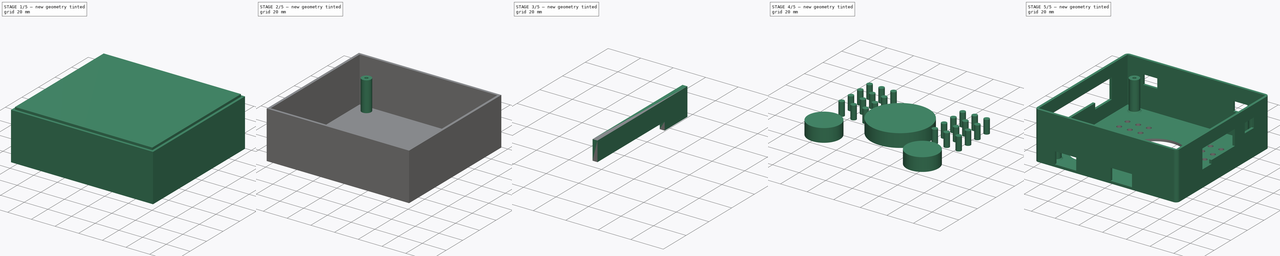
[diagram: build sequence overview — one tinted view per stage of 5, left to right]
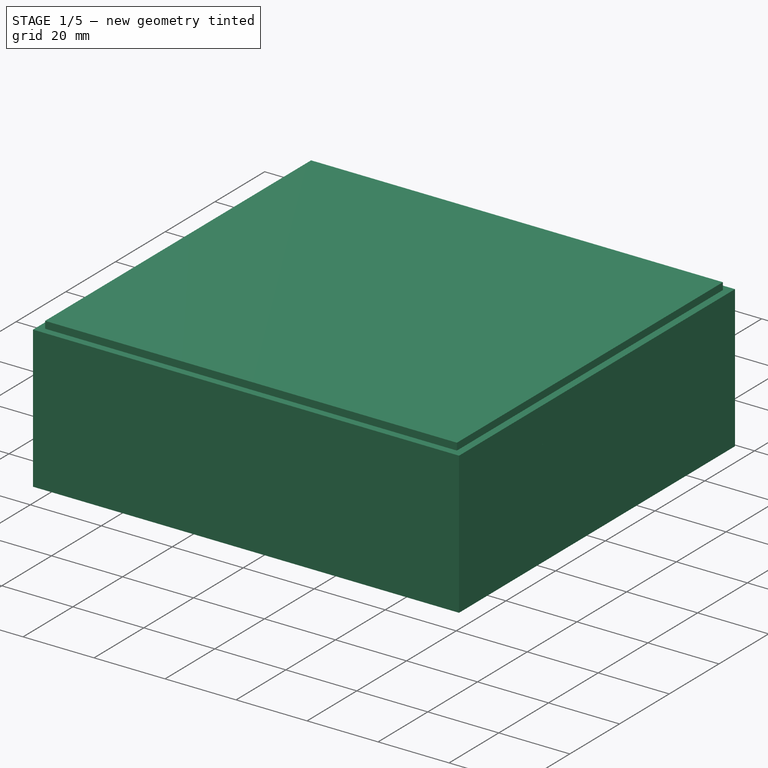
[diagram: stage 1 of 5 — iso view after this stage's code; geometry added in this stage tinted green]
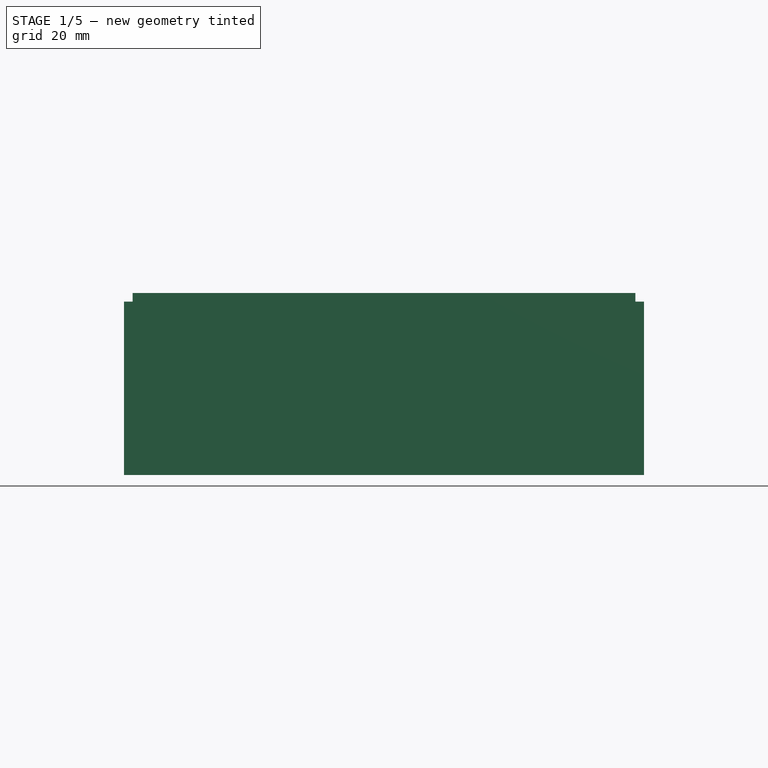
[diagram: stage 1 of 5 — front view after this stage's code; geometry added in this stage tinted green]
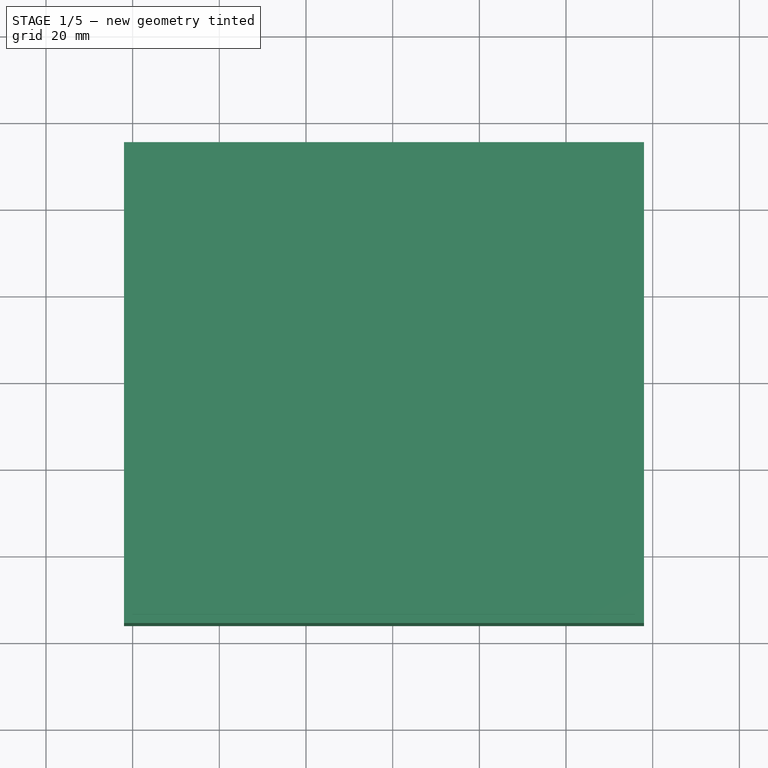
[diagram: stage 1 of 5 — top view after this stage's code; geometry added in this stage tinted green]
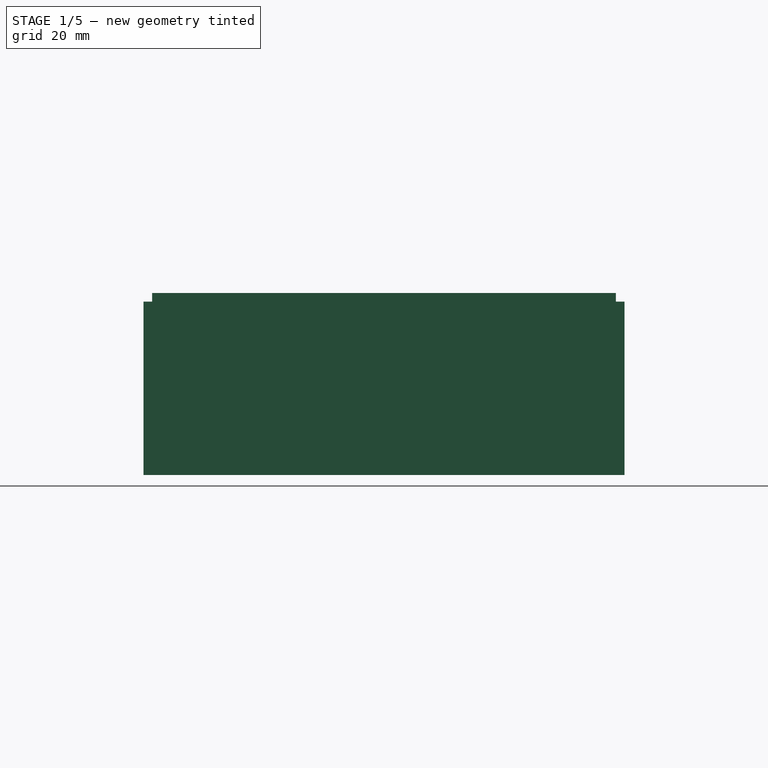
[diagram: stage 1 of 5 — right view after this stage's code; geometry added in this stage tinted green]
FCSTD DOCUMENT  (FreeCAD 0.16R6700 (Git))
Label: colibri-v2-box
License: All rights reserved
LicenseURL: http://en.wikipedia.org/wiki/All_rights_reserved
objects: Part::Cut×6, Sketcher::SketchObject×6, Part::Extrusion×6, Part::Box×2, Part::Fuse×1, Part::Fillet×1, Part::Chamfer×1
note: 23 computed .brp shape members not serialized (recipe doc carries the construction recipe); baked Part::Feature solids carry a one-line shape summary decoded from their .brp

FEATURE [Part::Box] Box  label="Outer"
  Height = 40
  Length = 120
  Placement = pos=(-62,-56,0) rot=(0,0,1;0rad)
  Width = 111
FEATURE [Part::Box] Box001  label="Inner"
  Height = 40
  Length = 116
  Placement = pos=(-60,-54,2) rot=(0,0,1;0rad)
  Width = 107
FEATURE [Part::Extrusion] Extrude002  label="Extrude Wall Plug"
  Base = -> Sketch002
  Dir = (-5,0,0)
  Solid = true
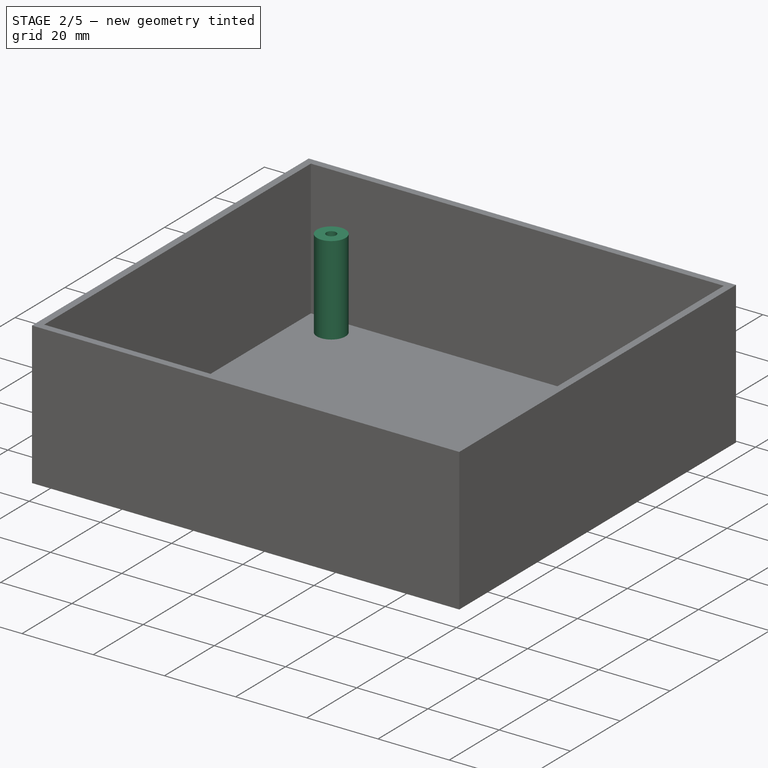
[diagram: stage 2 of 5 — iso view after this stage's code; geometry added in this stage tinted green]
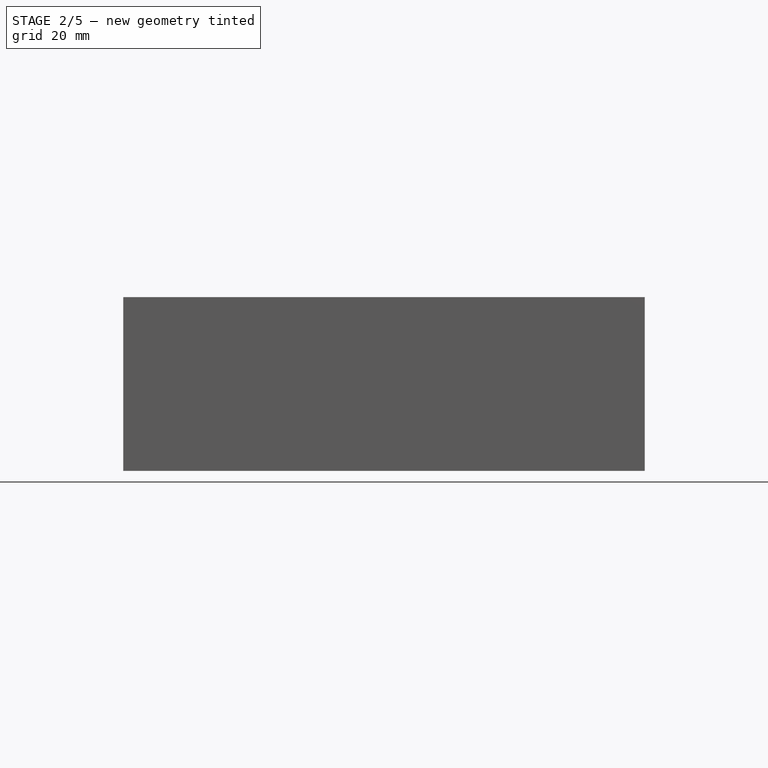
[diagram: stage 2 of 5 — front view after this stage's code; geometry added in this stage tinted green]
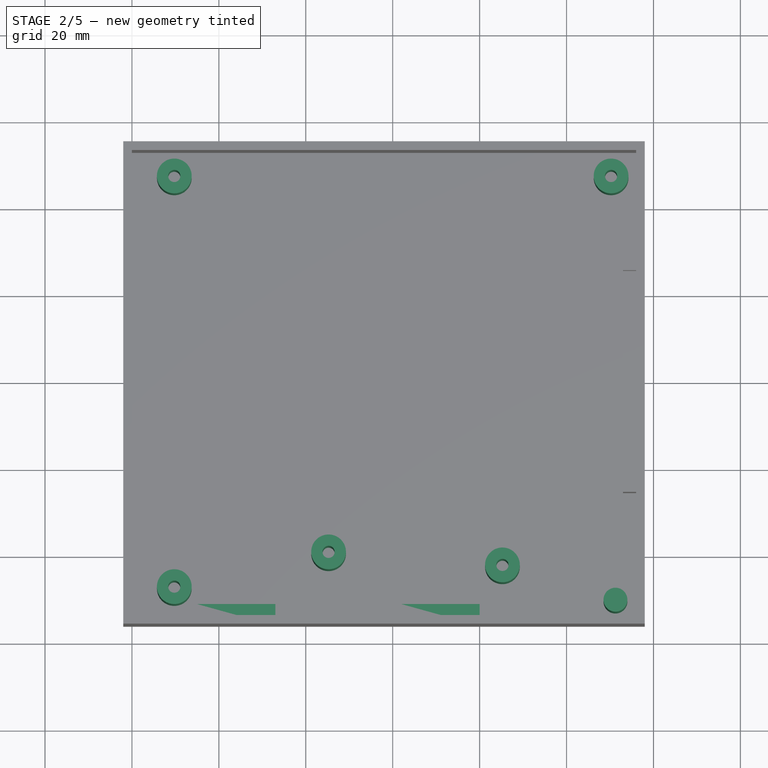
[diagram: stage 2 of 5 — top view after this stage's code; geometry added in this stage tinted green]
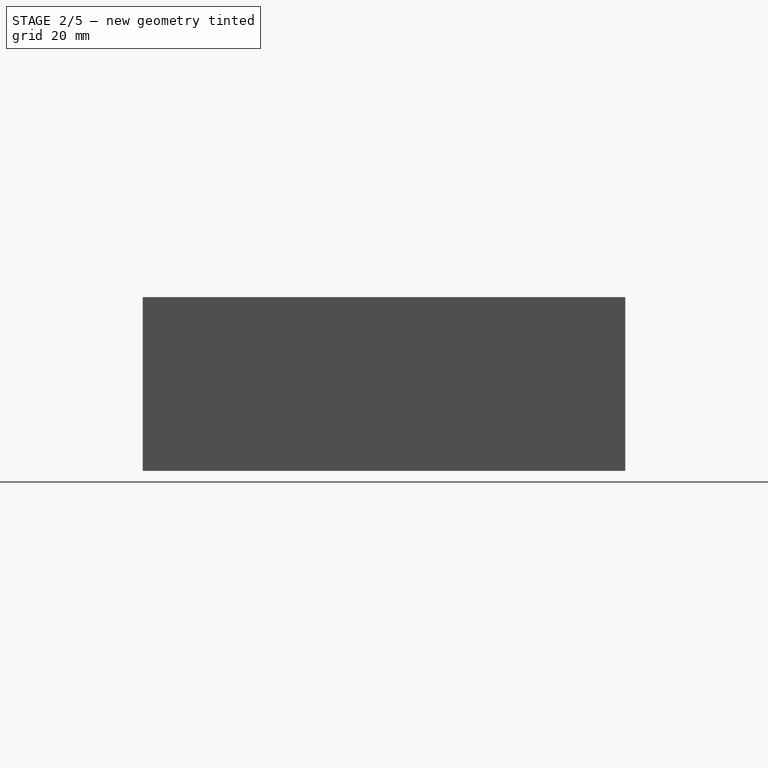
[diagram: stage 2 of 5 — right view after this stage's code; geometry added in this stage tinted green]
FEATURE [Part::Cut] Cut  label="Main"
  Base = -> Box
  Tool = -> Box001
FEATURE [Sketcher::SketchObject] Sketch001  label="Mount Columns Sketch"
  Placement = pos=(0,0,2) rot=(0,0,1;0rad)
  sketch-geometry (16):
    g0: LineSegment [constr] StartX=-50.25 StartY=47.25 StartZ=0 EndX=50.25 EndY=47.25 EndZ=0
    g1: LineSegment [constr] StartX=50.25 StartY=47.25 StartZ=0 EndX=50.25 EndY=-47.25 EndZ=0
    g2: LineSegment [constr] StartX=50.25 StartY=-47.25 StartZ=0 EndX=-50.25 EndY=-47.25 EndZ=0
    g3: LineSegment [constr] StartX=-50.25 StartY=-47.25 StartZ=0 EndX=-50.25 EndY=47.25 EndZ=0
    g4: GeomPoint [constr] X=50.25 Y=-47.25 Z=0
    g5: Circle CenterX=-50.25 CenterY=-47.25 CenterZ=0 NormalX=0 NormalY=0 NormalZ=1 Radius=1.4
    g6: Circle CenterX=50.25 CenterY=47.25 CenterZ=0 NormalX=0 NormalY=0 NormalZ=1 Radius=1.4
    g7: Circle CenterX=-50.25 CenterY=-47.25 CenterZ=0 NormalX=0 NormalY=0 NormalZ=1 Radius=4
    g8: Circle CenterX=50.25 CenterY=47.25 CenterZ=0 NormalX=0 NormalY=0 NormalZ=1 Radius=4
    g9: Circle CenterX=-50.25 CenterY=47.25 CenterZ=0 NormalX=0 NormalY=0 NormalZ=1 Radius=4
    g10: Circle CenterX=-50.25 CenterY=47.25 CenterZ=0 NormalX=0 NormalY=0 NormalZ=1 Radius=1.4
    g11: Circle CenterX=25.25 CenterY=-42.25 CenterZ=0 NormalX=0 NormalY=0 NormalZ=1 Radius=4
    g12: Circle CenterX=25.25 CenterY=-42.25 CenterZ=0 NormalX=0 NormalY=0 NormalZ=1 Radius=1.4
    g13: Circle CenterX=51.25 CenterY=-50.25 CenterZ=0 NormalX=0 NormalY=0 NormalZ=1 Radius=2.75
    g14: Circle CenterX=-14.75 CenterY=-39.25 CenterZ=0 NormalX=0 NormalY=0 NormalZ=1 Radius=4
    g15: Circle CenterX=-14.75 CenterY=-39.25 CenterZ=0 NormalX=0 NormalY=0 NormalZ=1 Radius=1.4
  constraints (39):
    c: Coincident(g0,g1)
    c: Coincident(g1,g2)
    c: Coincident(g3,g0)
    c: Horizontal(g0)
    c: Horizontal(g2)
    c: Vertical(g1)
    c: Vertical(g3)
    c: Symmetric(g0,g0,g-2)
    c: Symmetric(g0,g2,g-1)
    c: DistanceX(g0,g0) = 100.5
    c: PointOnObject(g4,g1)
    c: DistanceY(g4,g0) = 94.5
    c: Coincident(g5,g2)
    c: Coincident(g6,g0)
    c: Coincident(g7,g2)
    c: Coincident(g8,g0)
    c: Coincident(g4,g1)
    c: Coincident(g10,g9)
    c: Radius(g9) = 4
    c: Equal(g9,g8)
    c: Radius(g10) = 1.4
    c: Equal(g10,g6)
    c: Equal(g10,g5)
    c: Coincident(g3,g2)
    c: Coincident(g9,g0)
    c: Equal(g7,g9)
    c: Coincident(g12,g11)
    c: Equal(g12,g10)
    c: Equal(g11,g9)
    c: DistanceY(g2,g11) = 5
    c: DistanceX(g2,g11) = 75.5
    c: Radius(g13) = 2.75
    c: DistanceY(g13,g1) = 3
    c: DistanceX(g1,g13) = 1
    c: Coincident(g15,g14)
    c: Equal(g14,g9)
    c: Equal(g15,g10)
    c: DistanceX(g2,g14) = 35.5
    c: DistanceY(g2,g14) = 8
FEATURE [Sketcher::SketchObject] Sketch  label="Sketch Battery"
  ExternalGeometry = -> [Cut]
  Placement = pos=(0,-56,0) rot=(1,0,0;1.5708rad)
  Support = -> Cut [Face2]
  sketch-geometry (8):
    g0: LineSegment StartX=2 StartY=12 StartZ=0 EndX=20 EndY=12 EndZ=0
    g1: LineSegment StartX=20 StartY=12 StartZ=0 EndX=20 EndY=2 EndZ=0
    g2: LineSegment StartX=20 StartY=2 StartZ=0 EndX=2 EndY=2 EndZ=0
    g3: LineSegment StartX=2 StartY=2 StartZ=0 EndX=2 EndY=12 EndZ=0
    g4: LineSegment StartX=-45 StartY=12 StartZ=0 EndX=-27 EndY=12 EndZ=0
    g5: LineSegment StartX=-27 StartY=12 StartZ=0 EndX=-27 EndY=2 EndZ=0
    g6: LineSegment StartX=-27 StartY=2 StartZ=0 EndX=-45 EndY=2 EndZ=0
    g7: LineSegment StartX=-45 StartY=2 StartZ=0 EndX=-45 EndY=12 EndZ=0
  constraints (24):
    c: Coincident(g0,g1)
    c: Coincident(g1,g2)
    c: Coincident(g2,g3)
    c: Coincident(g3,g0)
    c: Horizontal(g0)
    c: Horizontal(g2)
    c: Vertical(g1)
    c: Vertical(g3)
    c: Coincident(g4,g5)
    c: Coincident(g5,g6)
    c: Coincident(g6,g7)
    c: Coincident(g7,g4)
    c: Horizontal(g4)
    c: Horizontal(g6)
    c: Vertical(g5)
    c: Vertical(g7)
    c: PointOnObject(g1,g-3)
    c: PointOnObject(g5,g-3)
    c: DistanceX(g-2,g0) = 2
    c: Distance(g4) = 18
    c: Distance(g7) = 10
    c: DistanceX(g-2,g4) = -45
    c: Equal(g3,g7)
    c: Equal(g0,g4)
FEATURE [Part::Extrusion] Extrude001  label="Mount Extrude"
  Base = -> Sketch001
  Dir = (0,0,25)
  Solid = true
FEATURE [Sketcher::SketchObject] Sketch002  label="Sketch Wall Plug"
  Placement = pos=(58,0,0) rot=(0.57735,0.57735,0.57735;2.0944rad)
  sketch-geometry (11):
    g0: LineSegment StartX=-25.5 StartY=30 StartZ=0 EndX=13.5 EndY=30 EndZ=0
    g1: LineSegment StartX=13.5 StartY=30 StartZ=0 EndX=13.5 EndY=17 EndZ=0
    g2: LineSegment StartX=13.5 StartY=17 StartZ=0 EndX=-14.5 EndY=17 EndZ=0
    g3: LineSegment StartX=-14.5 StartY=17 StartZ=0 EndX=-14.5 EndY=14 EndZ=0
    g4: LineSegment StartX=-14.5 StartY=14 StartZ=0 EndX=-25.5 EndY=14 EndZ=0
    g5: LineSegment StartX=-25.5 StartY=14 StartZ=0 EndX=-25.5 EndY=30 EndZ=0
    g6: LineSegment StartX=25.5 StartY=30 StartZ=0 EndX=36.5 EndY=30 EndZ=0
    g7: LineSegment StartX=36.5 StartY=30 StartZ=0 EndX=36.5 EndY=22 EndZ=0
    g8: LineSegment StartX=36.5 StartY=22 StartZ=0 EndX=25.5 EndY=22 EndZ=0
    g9: LineSegment StartX=25.5 StartY=22 StartZ=0 EndX=25.5 EndY=30 EndZ=0
    g10: LineSegment [constr] StartX=13.5 StartY=30 StartZ=0 EndX=36.5 EndY=30 EndZ=0
  constraints (33):
    c: Horizontal(g0)
    c: Coincident(g0,g1)
    c: Vertical(g1)
    c: Coincident(g1,g2)
    c: Horizontal(g2)
    c: Coincident(g2,g3)
    c: Vertical(g3)
    c: Coincident(g3,g4)
    c: Horizontal(g4)
    c: Coincident(g4,g5)
    c: Coincident(g5,g0)
    c: Vertical(g5)
    c: DistanceX(g-2,g4) = -25.5
    c: Distance(g5) = 16
    c: Distance(g1) = 13
    c: Distance(g4) = 11
    c: Distance(g2) = 28
    c: Coincident(g6,g7)
    c: Coincident(g7,g8)
    c: Coincident(g8,g9)
    c: Coincident(g9,g6)
    c: Horizontal(g6)
    c: Horizontal(g8)
    c: Vertical(g7)
    c: Vertical(g9)
    c: Distance(g6) = 11
    c: Distance(g9) = 8
    c: DistanceX(g-2,g8) = 25.5
    c: DistanceY(g-1,g0) = 30
    c: Coincident(g10,g0)
    c: PointOnObject(g10,g7)
    c: Horizontal(g10)
    c: PointOnObject(g6,g10)
FEATURE [Part::Fuse] Fusion
  Base = -> Cut
  Tool = -> Extrude001
FEATURE [Part::Extrusion] Extrude  label="Extrude Battery"
  Base = -> Sketch
  Dir = (0,5,0)
  Solid = true
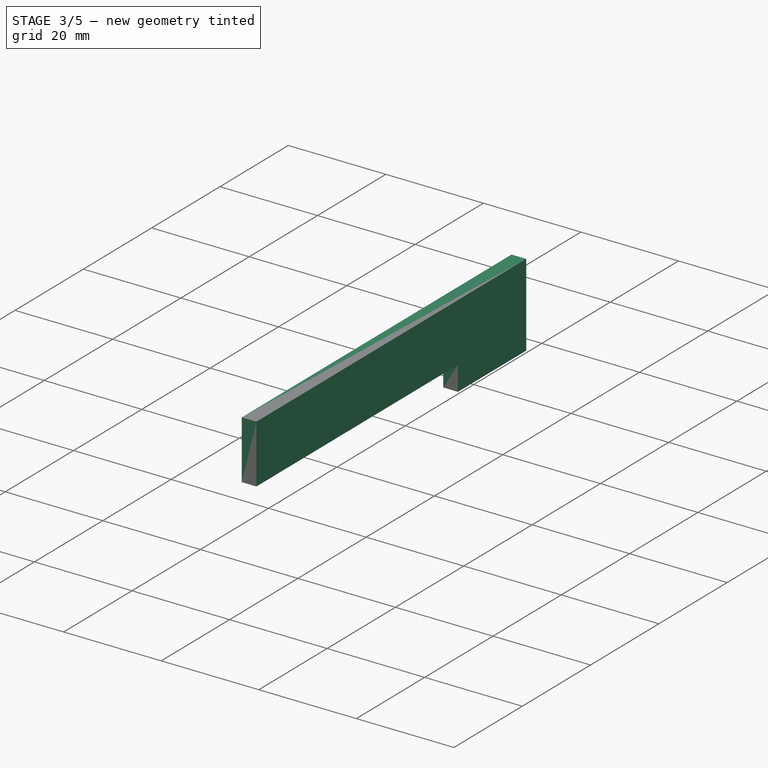
[diagram: stage 3 of 5 — iso view after this stage's code; geometry added in this stage tinted green]
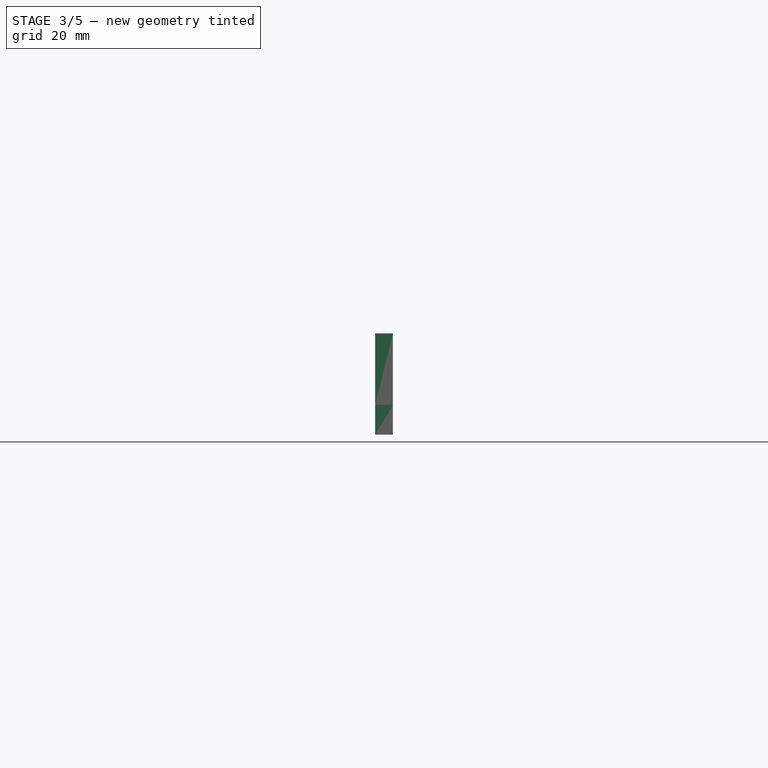
[diagram: stage 3 of 5 — front view after this stage's code; geometry added in this stage tinted green]
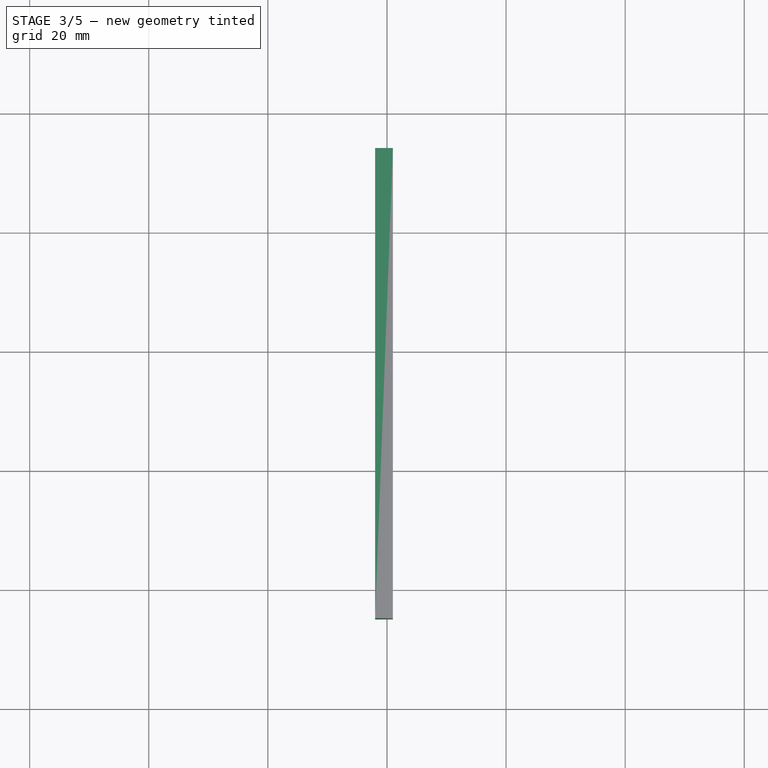
[diagram: stage 3 of 5 — top view after this stage's code; geometry added in this stage tinted green]
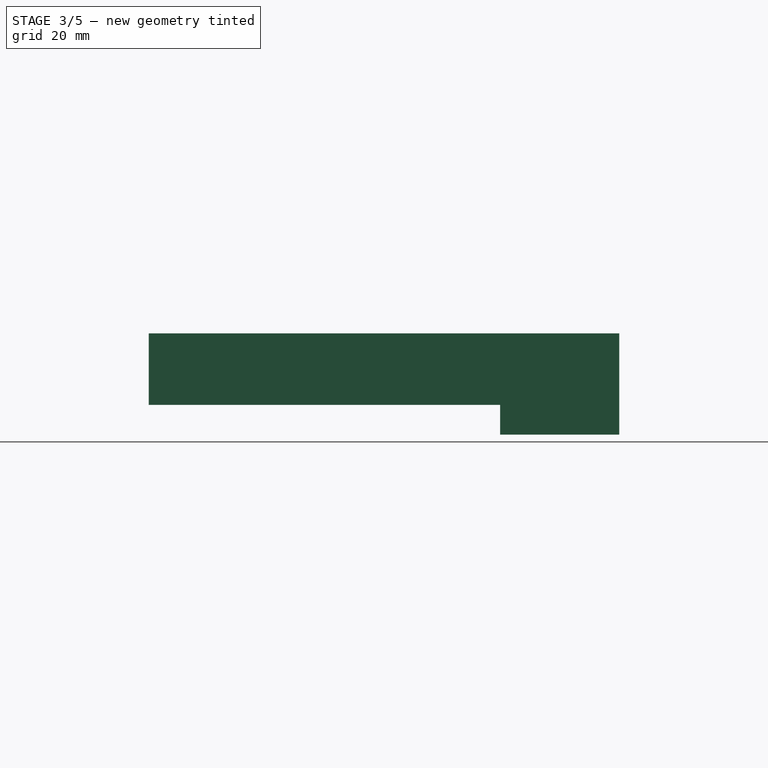
[diagram: stage 3 of 5 — right view after this stage's code; geometry added in this stage tinted green]
FEATURE [Part::Cut] Cut001
  Base = -> Fusion
  Tool = -> Extrude
FEATURE [Part::Cut] Cut002
  Base = -> Cut001
  Tool = -> Extrude002
FEATURE [Sketcher::SketchObject] Sketch003  label="Sketch PWM"
  Placement = pos=(-62,0,0) rot=(0.57735,-0.57735,-0.57735;2.0944rad)
  Support = -> Cut002 [Face1]
  sketch-geometry (6):
    g0: LineSegment StartX=-34 StartY=30 StartZ=0 EndX=45 EndY=30 EndZ=0
    g1: LineSegment StartX=45 StartY=30 StartZ=0 EndX=45 EndY=18 EndZ=0
    g2: LineSegment StartX=45 StartY=18 StartZ=0 EndX=-14 EndY=18 EndZ=0
    g3: LineSegment StartX=-14 StartY=18 StartZ=0 EndX=-14 EndY=13 EndZ=0
    g4: LineSegment StartX=-14 StartY=13 StartZ=0 EndX=-34 EndY=13 EndZ=0
    g5: LineSegment StartX=-34 StartY=13 StartZ=0 EndX=-34 EndY=30 EndZ=0
  constraints (18):
    c: Horizontal(g0)
    c: Coincident(g0,g1)
    c: Vertical(g1)
    c: Coincident(g1,g2)
    c: Horizontal(g2)
    c: Coincident(g2,g3)
    c: Vertical(g3)
    c: Coincident(g3,g4)
    c: Horizontal(g4)
    c: Coincident(g4,g5)
    c: Coincident(g5,g0)
    c: Vertical(g5)
    c: DistanceY(g-1,g0) = 30
    c: DistanceX(g-2,g0) = -34
    c: Distance(g5) = 17
    c: Distance(g4) = 20
    c: Distance(g1) = 12
    c: Distance(g2) = 59
FEATURE [Part::Extrusion] Extrude003  label="Extrude PWM"
  Base = -> Sketch003
  Dir = (3,0,0)
  Solid = true
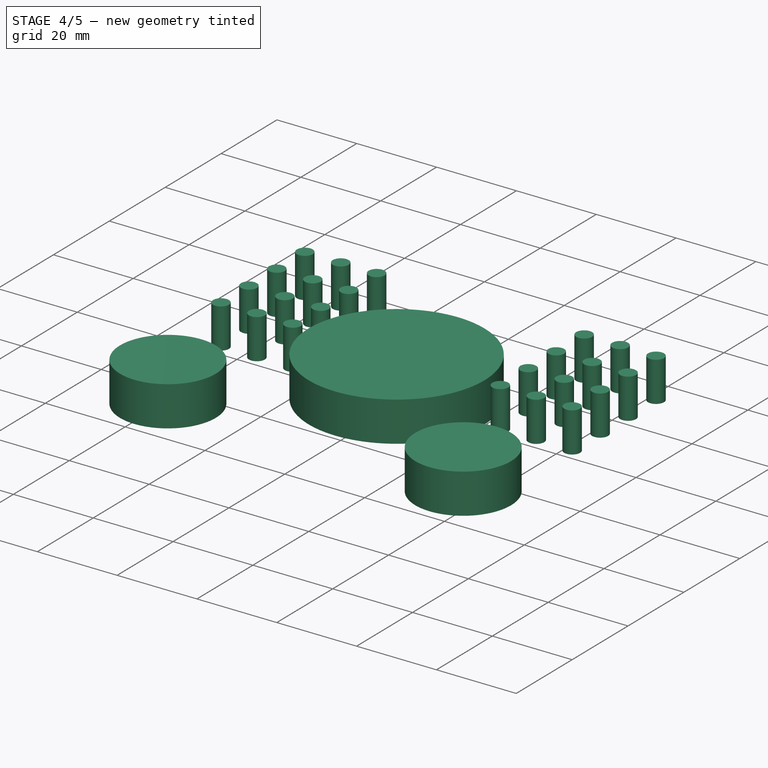
[diagram: stage 4 of 5 — iso view after this stage's code; geometry added in this stage tinted green]
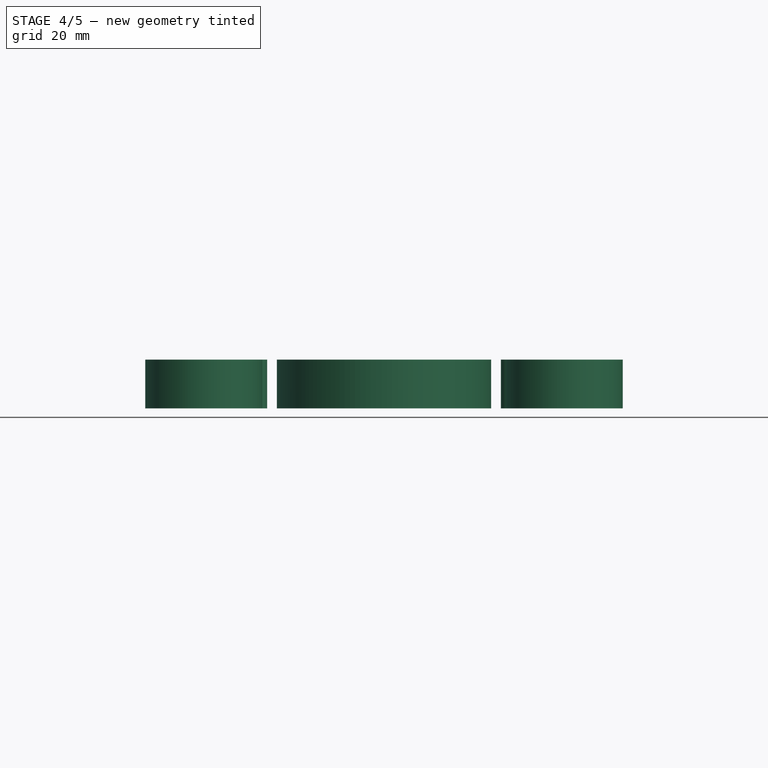
[diagram: stage 4 of 5 — front view after this stage's code; geometry added in this stage tinted green]
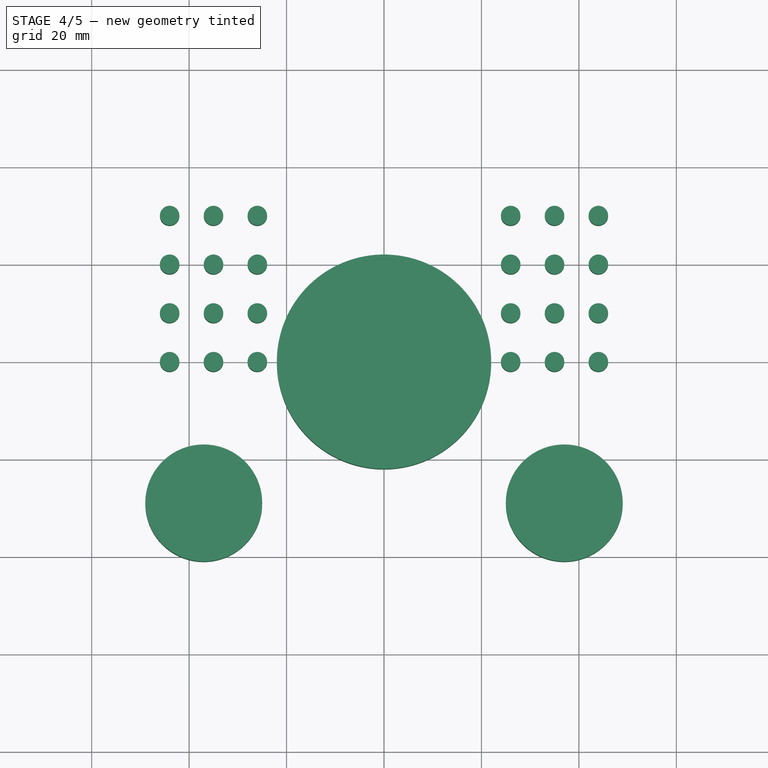
[diagram: stage 4 of 5 — top view after this stage's code; geometry added in this stage tinted green]
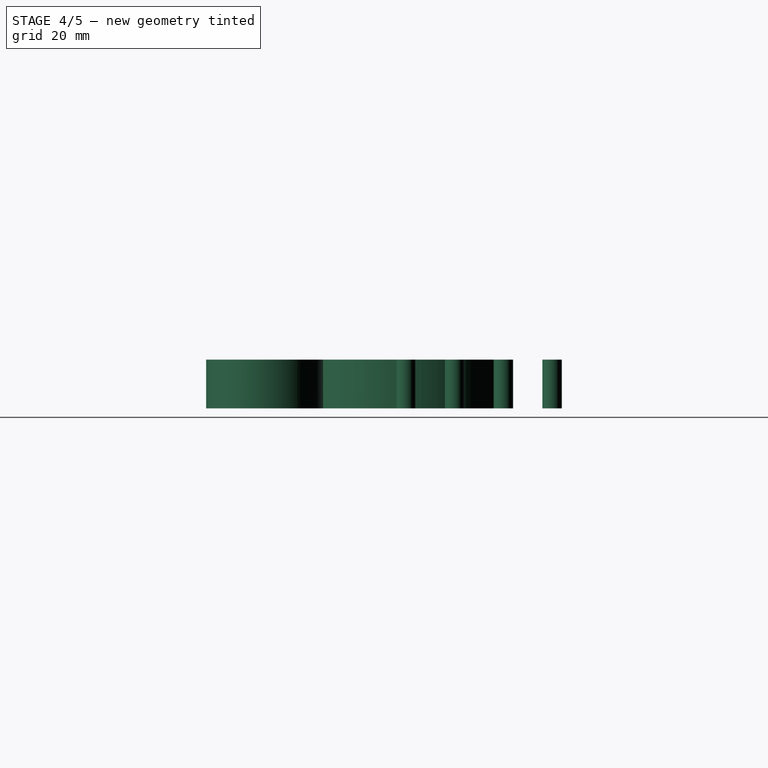
[diagram: stage 4 of 5 — right view after this stage's code; geometry added in this stage tinted green]
FEATURE [Part::Cut] Cut003
  Base = -> Cut002
  Tool = -> Extrude003
FEATURE [Sketcher::SketchObject] Sketch004  label="Sketch Antenna"
  Placement = pos=(0,55,0) rot=(0,0.707107,0.707107;3.14159rad)
  Support = -> Cut003 [Face5]
  sketch-geometry (9):
    g0: Circle CenterX=-25 CenterY=10 CenterZ=0 NormalX=0 NormalY=0 NormalZ=1 Radius=3.2
    g1: LineSegment StartX=-41 StartY=28.5 StartZ=0 EndX=-29 EndY=28.5 EndZ=0
    g2: LineSegment StartX=-29 StartY=28.5 StartZ=0 EndX=-29 EndY=20.5 EndZ=0
    g3: LineSegment StartX=-29 StartY=20.5 StartZ=0 EndX=-41 EndY=20.5 EndZ=0
    g4: LineSegment StartX=-41 StartY=20.5 StartZ=0 EndX=-41 EndY=28.5 EndZ=0
    g5: LineSegment StartX=35 StartY=28.5 StartZ=0 EndX=47 EndY=28.5 EndZ=0
    g6: LineSegment StartX=47 StartY=28.5 StartZ=0 EndX=47 EndY=20.5 EndZ=0
    g7: LineSegment StartX=47 StartY=20.5 StartZ=0 EndX=35 EndY=20.5 EndZ=0
    g8: LineSegment StartX=35 StartY=20.5 StartZ=0 EndX=35 EndY=28.5 EndZ=0
  constraints (27):
    c: Radius(g0) = 3.2
    c: DistanceX(g-2,g0) = -25
    c: DistanceY(g-1,g0) = 10
    c: Coincident(g1,g2)
    c: Coincident(g2,g3)
    c: Coincident(g3,g4)
    c: Coincident(g4,g1)
    c: Horizontal(g1)
    c: Horizontal(g3)
    c: Vertical(g2)
    c: Vertical(g4)
    c: Coincident(g5,g6)
    c: Coincident(g6,g7)
    c: Coincident(g7,g8)
    c: Coincident(g8,g5)
    c: Horizontal(g5)
    c: Horizontal(g7)
    c: Vertical(g6)
    c: Vertical(g8)
    c: Distance(g1) = 12
    c: Distance(g2) = 8
    c: DistanceY(g-1,g3) = 20.5
    c: DistanceX(g-2,g2) = -29
    c: Equal(g2,g8)
    c: Equal(g5,g1)
    c: DistanceX(g-2,g7) = 35
    c: DistanceY(g-1,g7) = 20.5
FEATURE [Part::Extrusion] Extrude004  label="Extrude Antenna"
  Base = -> Sketch004
  Dir = (0,-5,0)
  Solid = true
FEATURE [Part::Cut] Cut004
  Base = -> Cut003
  Tool = -> Extrude004
FEATURE [Sketcher::SketchObject] Sketch005  label="Sketch Lite"
  Placement = pos=(0,0,2) rot=(0,0,1;0rad)
  Support = -> Cut004 [Face46]
  sketch-geometry (39):
    g0: Circle CenterX=0 CenterY=0 CenterZ=0 NormalX=0 NormalY=0 NormalZ=1 Radius=22
    g1: Circle CenterX=-37 CenterY=-29 CenterZ=0 NormalX=0 NormalY=0 NormalZ=1 Radius=12
    g2: Circle CenterX=37 CenterY=-29 CenterZ=0 NormalX=0 NormalY=0 NormalZ=1 Radius=12
    g3: LineSegment [constr] StartX=-44 StartY=30 StartZ=0 EndX=-26 EndY=30 EndZ=0
    g4: LineSegment [constr] StartX=-26 StartY=30 StartZ=0 EndX=-26 EndY=0 EndZ=0
    g5: LineSegment [constr] StartX=-26 StartY=0 StartZ=0 EndX=-44 EndY=0 EndZ=0
    g6: LineSegment [constr] StartX=-44 StartY=0 StartZ=0 EndX=-44 EndY=30 EndZ=0
    g7: LineSegment [constr] StartX=26 StartY=30 StartZ=0 EndX=44 EndY=30 EndZ=0
    g8: LineSegment [constr] StartX=44 StartY=30 StartZ=0 EndX=44 EndY=0 EndZ=0
    g9: LineSegment [constr] StartX=44 StartY=0 StartZ=0 EndX=26 EndY=0 EndZ=0
    g10: LineSegment [constr] StartX=26 StartY=0 StartZ=0 EndX=26 EndY=30 EndZ=0
    g11: LineSegment [constr] StartX=-35 StartY=30 StartZ=0 EndX=-35 EndY=0 EndZ=0
    g12: LineSegment [constr] StartX=35 StartY=30 StartZ=0 EndX=35 EndY=0 EndZ=0
    g13: LineSegment [constr] StartX=-44 StartY=20 StartZ=0 EndX=44 EndY=20 EndZ=0
    g14: LineSegment [constr] StartX=-44 StartY=10 StartZ=0 EndX=44 EndY=10 EndZ=0
    g15: Circle CenterX=-44 CenterY=30 CenterZ=0 NormalX=0 NormalY=0 NormalZ=1 Radius=2
    g16: Circle CenterX=-35 CenterY=30 CenterZ=0 NormalX=0 NormalY=0 NormalZ=1 Radius=2
    g17: Circle CenterX=-26 CenterY=30 CenterZ=0 NormalX=0 NormalY=0 NormalZ=1 Radius=2
    g18: Circle CenterX=-26 CenterY=20 CenterZ=0 NormalX=0 NormalY=0 NormalZ=1 Radius=2
    g19: Circle CenterX=-35 CenterY=20 CenterZ=0 NormalX=0 NormalY=0 NormalZ=1 Radius=2
    g20: Circle CenterX=-44 CenterY=20 CenterZ=0 NormalX=0 NormalY=0 NormalZ=1 Radius=2
    g21: Circle CenterX=-44 CenterY=10 CenterZ=0 NormalX=0 NormalY=0 NormalZ=1 Radius=2
    g22: Circle CenterX=-35 CenterY=10 CenterZ=0 NormalX=0 NormalY=0 NormalZ=1 Radius=2
    g23: Circle CenterX=-26 CenterY=10 CenterZ=0 NormalX=0 NormalY=0 NormalZ=1 Radius=2
    g24: Circle CenterX=-44 CenterY=0 CenterZ=0 NormalX=0 NormalY=0 NormalZ=1 Radius=2
    g25: Circle CenterX=-35 CenterY=0 CenterZ=0 NormalX=0 NormalY=0 NormalZ=1 Radius=2
    g26: Circle CenterX=-26 CenterY=0 CenterZ=0 NormalX=0 NormalY=0 NormalZ=1 Radius=2
    g27: Circle CenterX=26 CenterY=0 CenterZ=0 NormalX=0 NormalY=0 NormalZ=1 Radius=2
    g28: Circle CenterX=35 CenterY=0 CenterZ=0 NormalX=0 NormalY=0 NormalZ=1 Radius=2
    g29: Circle CenterX=44 CenterY=0 CenterZ=0 NormalX=0 NormalY=0 NormalZ=1 Radius=2
    g30: Circle CenterX=44 CenterY=10 CenterZ=0 NormalX=0 NormalY=0 NormalZ=1 Radius=2
    g31: Circle CenterX=44 CenterY=20 CenterZ=0 NormalX=0 NormalY=0 NormalZ=1 Radius=2
    g32: Circle CenterX=44 CenterY=30 CenterZ=0 NormalX=0 NormalY=0 NormalZ=1 Radius=2
    g33: Circle CenterX=35 CenterY=30 CenterZ=0 NormalX=0 NormalY=0 NormalZ=1 Radius=2
    g34: Circle CenterX=26 CenterY=30 CenterZ=0 NormalX=0 NormalY=0 NormalZ=1 Radius=2
    g35: Circle CenterX=26 CenterY=20 CenterZ=0 NormalX=0 NormalY=0 NormalZ=1 Radius=2
    g36: Circle CenterX=35 CenterY=20 CenterZ=0 NormalX=0 NormalY=0 NormalZ=1 Radius=2
    g37: Circle CenterX=35 CenterY=10 CenterZ=0 NormalX=0 NormalY=0 NormalZ=1 Radius=2
    g38: Circle CenterX=26 CenterY=10 CenterZ=0 NormalX=0 NormalY=0 NormalZ=1 Radius=2
  constraints (103):
    c: Coincident(g0,g-1)
    c: Equal(g1,g2)
    c: DistanceY(g-1,g1) = -29
    c: Radius(g1) = 12
    c: Radius(g0) = 22
    c: Symmetric(g2,g1,g-2)
    c: DistanceX(g-2,g1) = -37
    c: Coincident(g3,g4)
    c: Coincident(g4,g5)
    c: Coincident(g5,g6)
    c: Coincident(g6,g3)
    c: Horizontal(g3)
    c: Horizontal(g5)
    c: Vertical(g4)
    c: Vertical(g6)
    c: PointOnObject(g4,g-1)
    c: Coincident(g7,g8)
    c: Coincident(g8,g9)
    c: Coincident(g9,g10)
    c: Coincident(g10,g7)
    c: Horizontal(g7)
    c: Horizontal(g9)
    c: Vertical(g8)
    c: Vertical(g10)
    c: PointOnObject(g8,g-1)
    c: Distance(g6) = 30
    c: Distance(g3) = 18
    c: Equal(g3,g7)
    c: Equal(g4,g10)
    c: Symmetric(g3,g7,g-2)
    c: DistanceX(g-2,g3) = -26
    c: PointOnObject(g11,g3)
    c: PointOnObject(g11,g5)
    c: Vertical(g11)
    c: PointOnObject(g12,g7)
    c: PointOnObject(g12,g9)
    c: Vertical(g12)
    c: Symmetric(g11,g12,g-2)
    c: Distance(g11,g4) = 9
    c: PointOnObject(g13,g6)
    c: PointOnObject(g13,g8)
    c: Horizontal(g13)
    c: PointOnObject(g14,g6)
    c: PointOnObject(g14,g8)
    c: Horizontal(g14)
    c: Distance(g14,g5) = 10
    c: Distance(g13,g5) = 20
    c: Coincident(g15,g3)
    c: Coincident(g16,g11)
    c: Coincident(g17,g3)
    c: PointOnObject(g18,g4)
    c: PointOnObject(g18,g13)
    c: PointOnObject(g19,g11)
    c: PointOnObject(g19,g13)
    c: Coincident(g20,g13)
    c: Coincident(g21,g14)
    c: PointOnObject(g22,g11)
    c: PointOnObject(g22,g14)
    c: PointOnObject(g23,g4)
    c: PointOnObject(g23,g14)
    c: Coincident(g24,g5)
    c: Coincident(g25,g11)
    c: Coincident(g26,g4)
    c: Coincident(g27,g9)
    c: Coincident(g28,g12)
    c: Coincident(g29,g8)
    c: Coincident(g30,g14)
    c: Coincident(g31,g13)
    c: Coincident(g32,g7)
    c: Coincident(g33,g12)
    c: Coincident(g34,g7)
    c: PointOnObject(g35,g10)
    c: PointOnObject(g35,g13)
    c: PointOnObject(g36,g12)
    c: PointOnObject(g36,g13)
    c: PointOnObject(g37,g12)
    c: PointOnObject(g37,g14)
    c: PointOnObject(g38,g10)
    c: PointOnObject(g38,g14)
    c: Radius(g15) = 2
    c: Equal(g15,g20)
    c: Equal(g20,g21)
    c: Equal(g21,g24)
    c: Equal(g24,g25)
    c: Equal(g25,g26)
    c: Equal(g26,g23)
    c: Equal(g23,g18)
    c: Equal(g18,g17)
    c: Equal(g17,g19)
    c: Equal(g19,g16)
    c: Equal(g16,g22)
    c: Equal(g22,g27)
    c: Equal(g27,g28)
    c: Equal(g28,g29)
    c: Equal(g29,g30)
    c: Equal(g30,g37)
    c: Equal(g37,g38)
    c: Equal(g38,g35)
    c: Equal(g35,g36)
    c: Equal(g36,g31)
    c: Equal(g31,g32)
    c: Equal(g32,g33)
    c: Equal(g33,g34)
FEATURE [Part::Extrusion] Extrude005  label="Extrude Lite"
  Base = -> Sketch005
  Dir = (0,0,-10)
  Solid = true
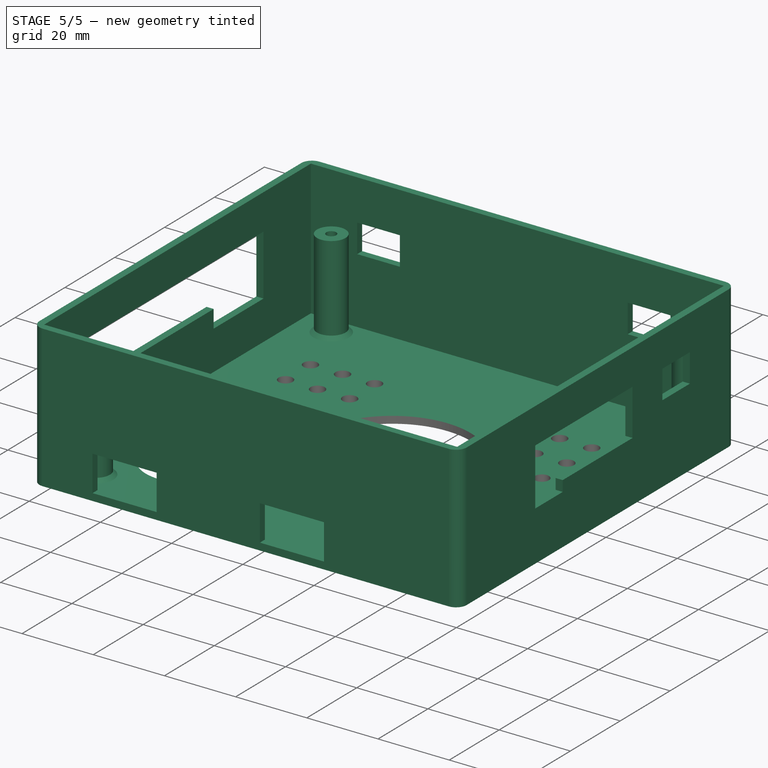
[diagram: stage 5 of 5 — iso view after this stage's code; geometry added in this stage tinted green]
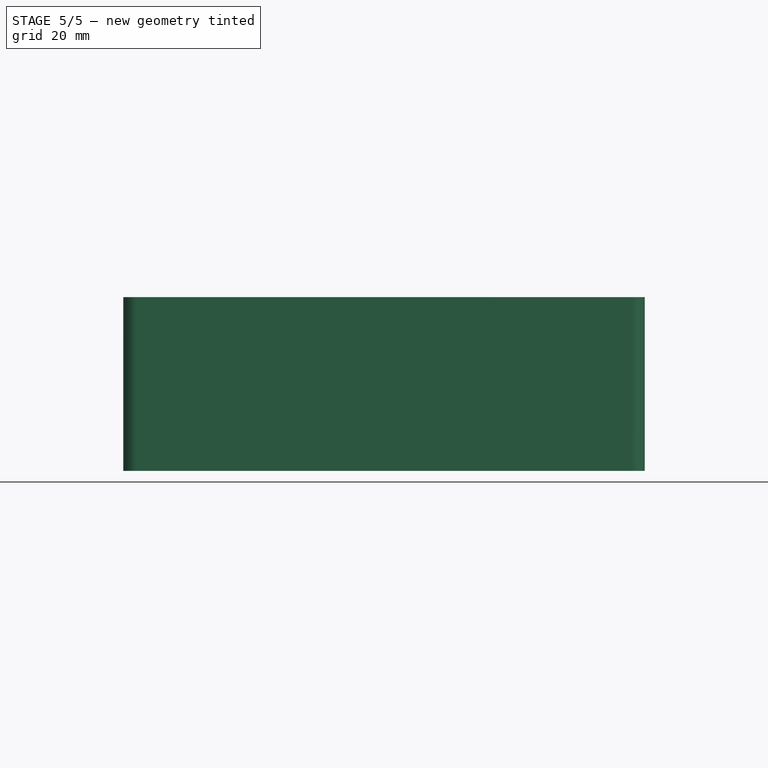
[diagram: stage 5 of 5 — front view after this stage's code; geometry added in this stage tinted green]
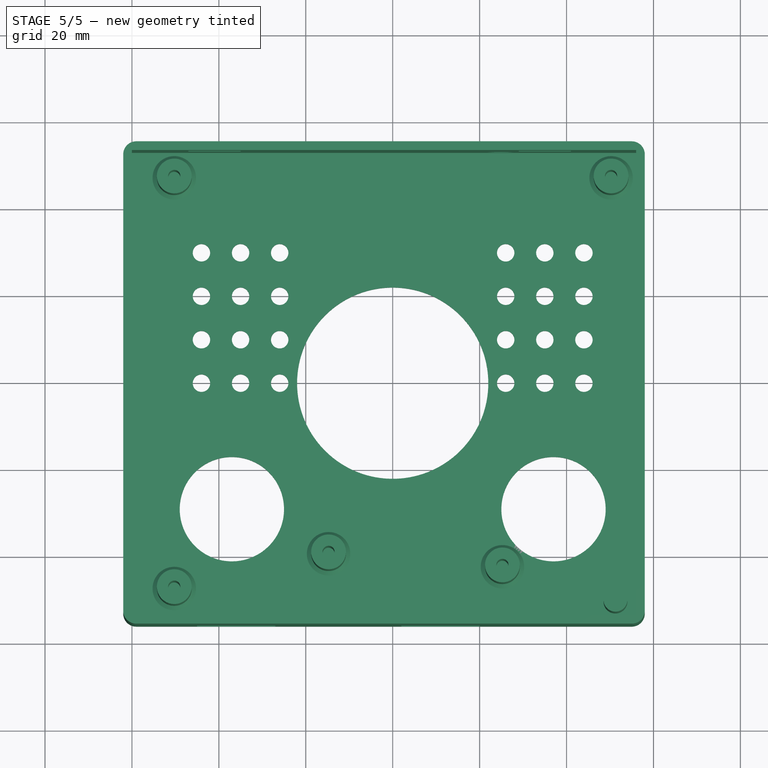
[diagram: stage 5 of 5 — top view after this stage's code; geometry added in this stage tinted green]
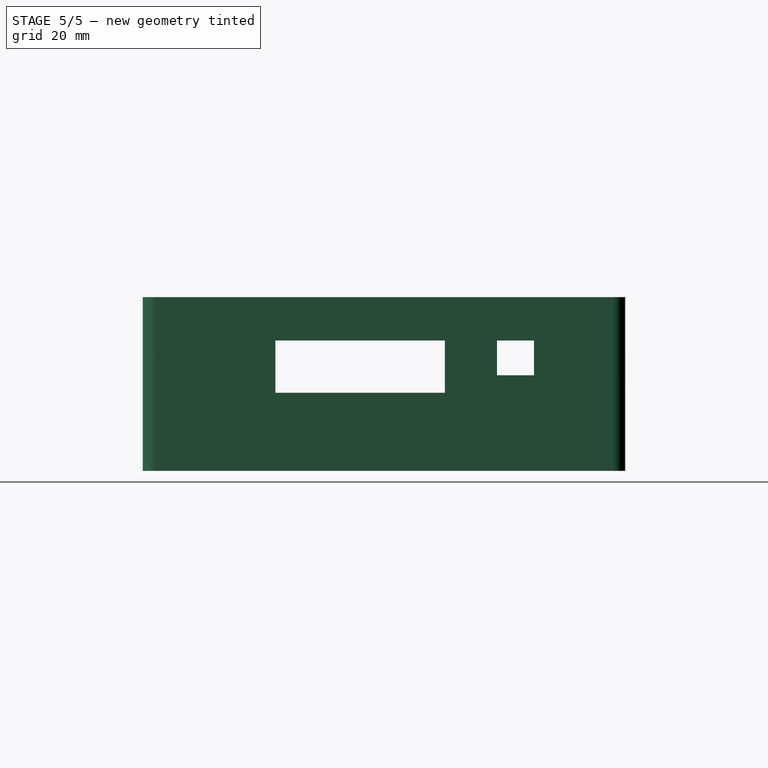
[diagram: stage 5 of 5 — right view after this stage's code; geometry added in this stage tinted green]
FEATURE [Part::Cut] Cut005
  Base = -> Cut004
  Tool = -> Extrude005
FEATURE [Part::Fillet] Fillet
  Base = -> Cut005
  Edges = 4 edges r=3: [Edge1,Edge4,Edge12,Edge57]
FEATURE [Part::Chamfer] Chamfer
  Base = -> Fillet
  Edges = 5 edges r=1: [Edge225,Edge227,Edge228,Edge229,Edge230]
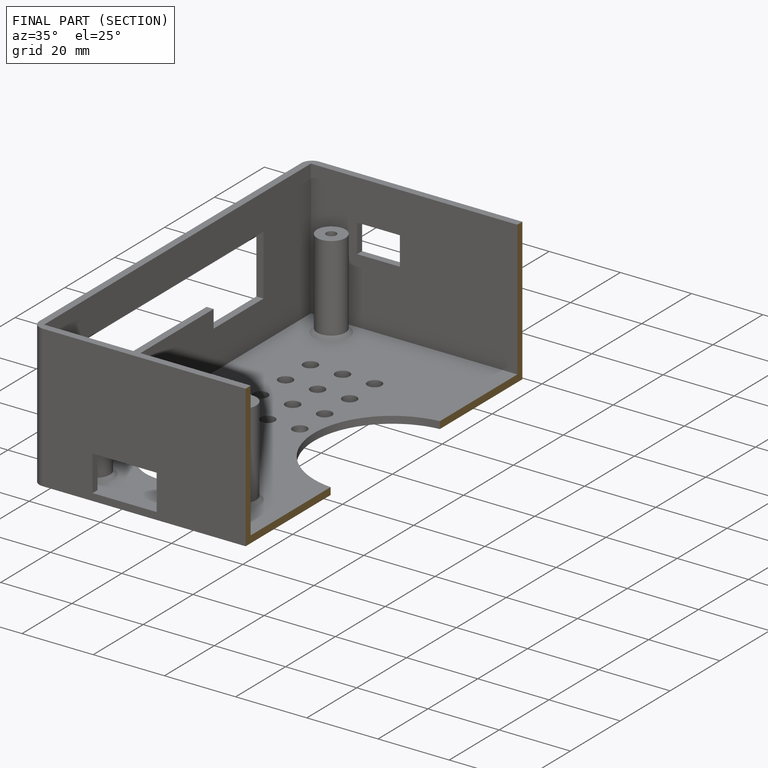
[diagram: finished part — half-section view (interior)]
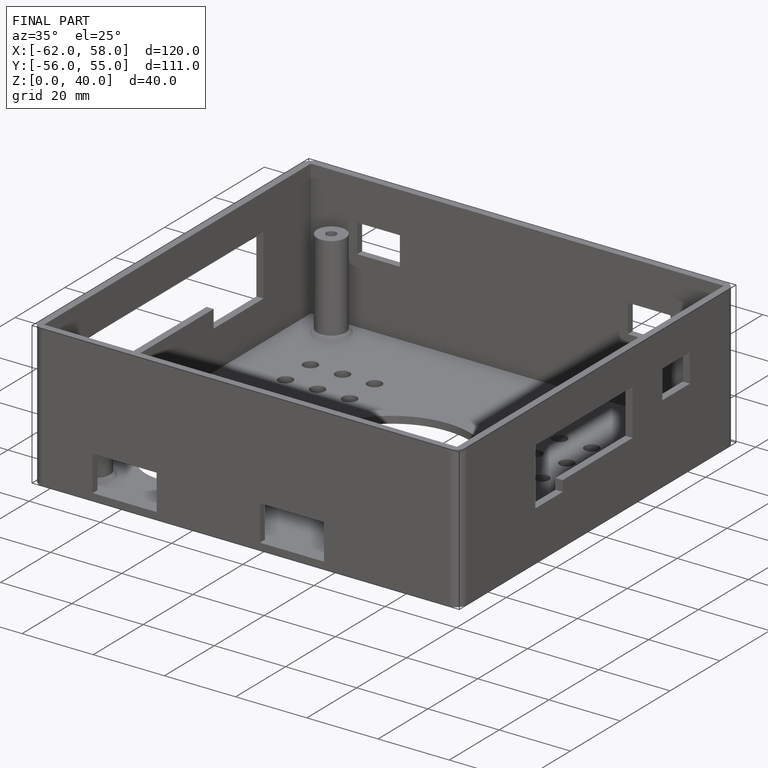
[diagram: finished part — iso view with bounding-box wireframe]
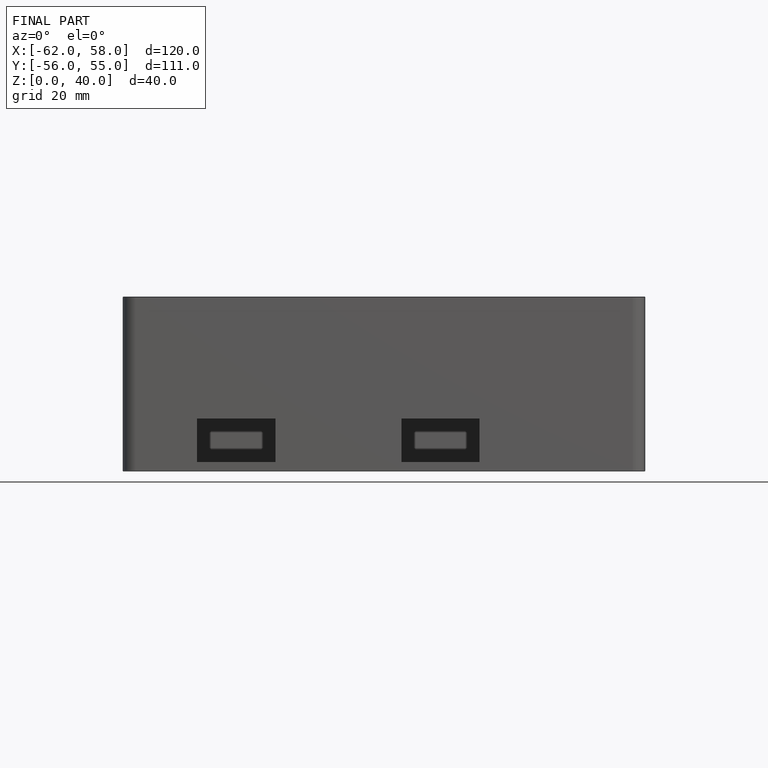
[diagram: finished part — front view with bounding-box wireframe]
